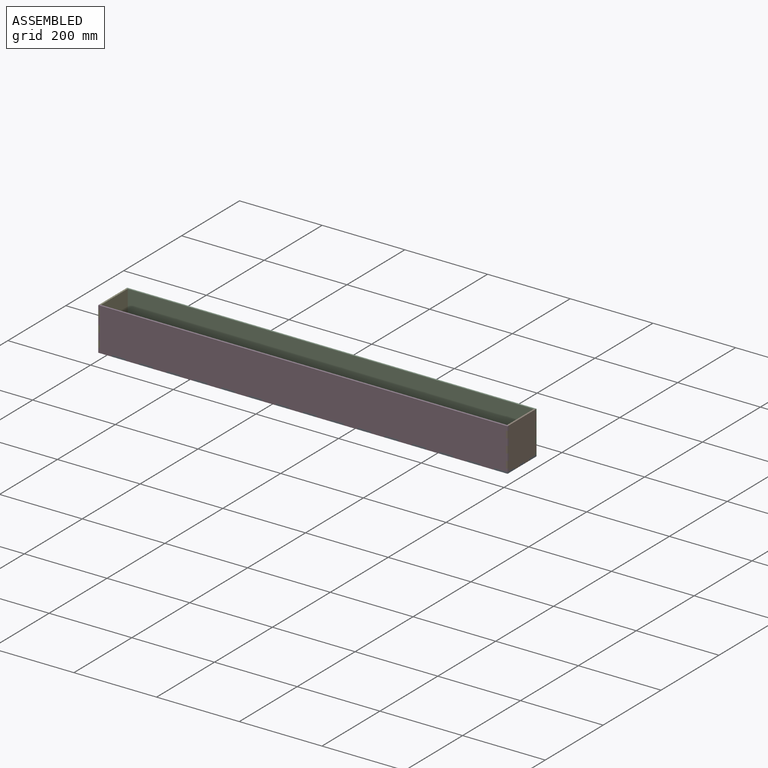
[diagram: assembled view]
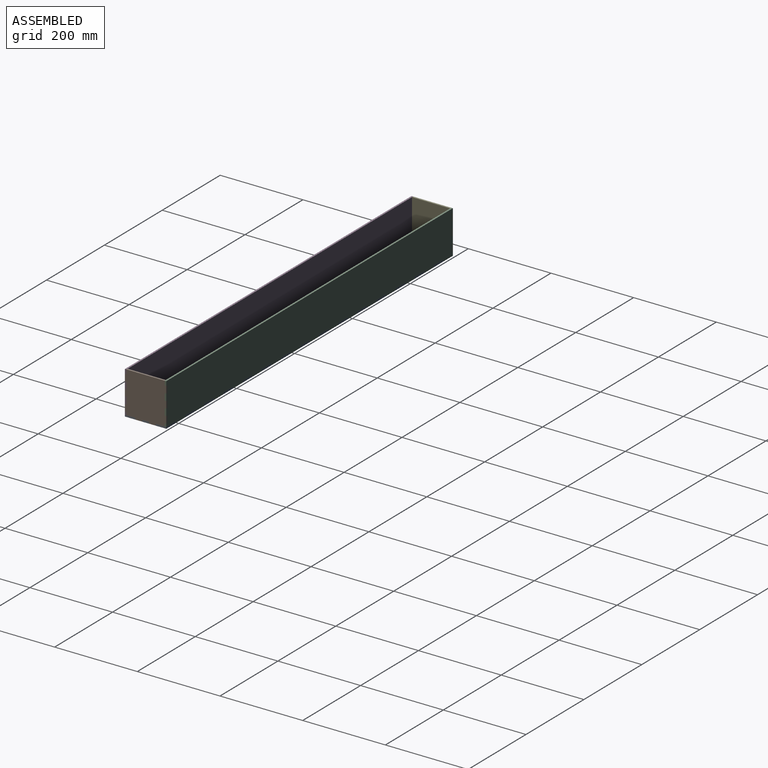
[diagram: assembled view, second angle]
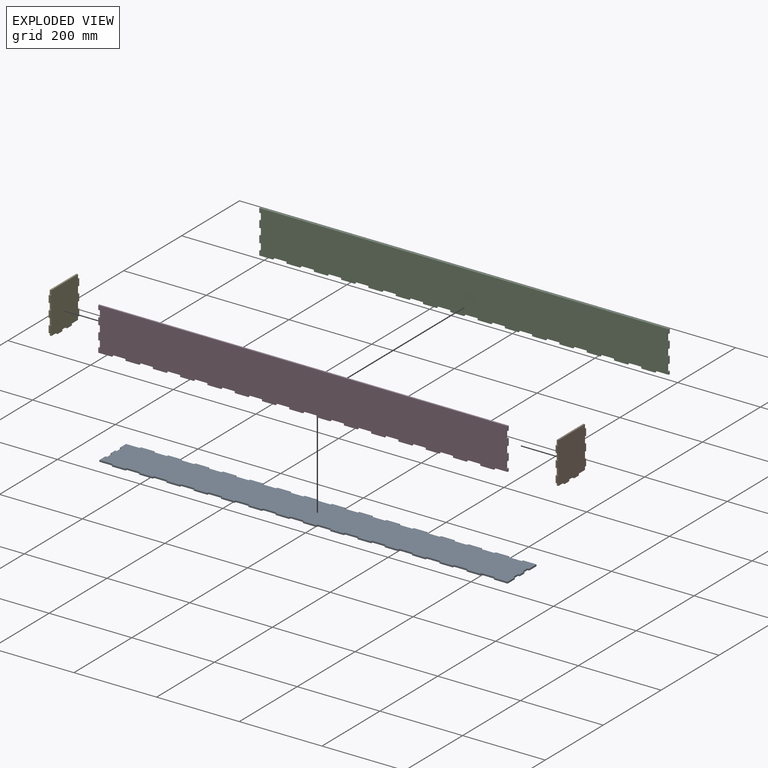
[diagram: exploded view]
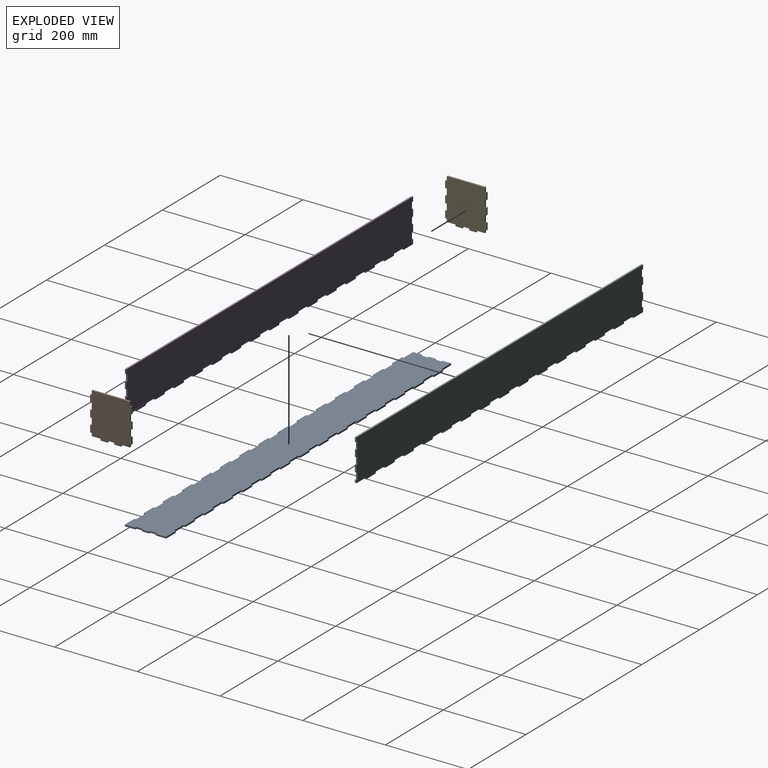
[diagram: exploded view, second angle]
ASSEMBLY  parts=5 mates=4
PART A: 138 faces, bbox 990x100x4 mm
  f0: plane 4x4mm, normal (1,0,0), area 16mm2, adj f1,f135,f136,f137
  f1: plane 33x4mm, normal (0,1,0), area 132mm2, adj f0,f2,f136,f137
  f2: plane 4x4mm, normal (-1,0,0), area 16mm2, adj f1,f3,f136,f137
  f3: plane 33x4mm, normal (0,1,0), area 132mm2, adj f2,f4,f136,f137
  f4: plane 21.25x4mm, normal (-1,0,0), area 85mm2, adj f3,f5,f136,f137
  f5: plane 4x4mm, normal (0,-1,0), area 16mm2, adj f4,f6,f136,f137
  f6: plane 16.5x4mm, normal (-1,0,0), area 66mm2, adj f5,f7,f136,f137
  f7: plane 4x4mm, normal (0,1,0), area 16mm2, adj f6,f8,f136,f137
  f8: plane 16.5x4mm, normal (-1,0,0), area 66mm2, adj f7,f9,f136,f137
  f9: plane 4x4mm, normal (0,-1,0), area 16mm2, adj f8,f10,f136,f137
  f10: plane 16.5x4mm, normal (-1,0,0), area 66mm2, adj f9,f11,f136,f137
  f11: plane 4x4mm, normal (0,1,0), area 16mm2, adj f10,f12,f136,f137
  f12: plane 21.25x4mm, normal (-1,0,0), area 85mm2, adj f11,f13,f136,f137
  f13: plane 33x4mm, normal (0,-1,0), area 132mm2, adj f12,f14,f136,f137
  f14: plane 4x4mm, normal (-1,0,0), area 16mm2, adj f13,f15,f136,f137
  f15: plane 33x4mm, normal (0,-1,0), area 132mm2, adj f14,f16,f136,f137
  f16: plane 4x4mm, normal (1,0,0), area 16mm2, adj f15,f17,f136,f137
  f17: plane 33x4mm, normal (0,-1,0), area 132mm2, adj f16,f18,f136,f137
  f18: plane 4x4mm, normal (-1,0,0), area 16mm2, adj f17,f19,f136,f137
  f19: plane 33x4mm, normal (0,-1,0), area 132mm2, adj f18,f20,f136,f137
  f20: plane 4x4mm, normal (1,0,0), area 16mm2, adj f19,f21,f136,f137
  f21: plane 33x4mm, normal (0,-1,0), area 132mm2, adj f20,f22,f136,f137
  f22: plane 4x4mm, normal (-1,0,0), area 16mm2, adj f21,f23,f136,f137
  f23: plane 33x4mm, normal (0,-1,0), area 132mm2, adj f22,f24,f136,f137
  f24: plane 4x4mm, normal (1,0,0), area 16mm2, adj f23,f25,f136,f137
  f25: plane 33x4mm, normal (0,-1,0), area 132mm2, adj f24,f26,f136,f137
  f26: plane 4x4mm, normal (-1,0,0), area 16mm2, adj f25,f27,f136,f137
  f27: plane 33x4mm, normal (0,-1,0), area 132mm2, adj f26,f28,f136,f137
  f28: plane 4x4mm, normal (1,0,0), area 16mm2, adj f27,f29,f136,f137
  f29: plane 33x4mm, normal (0,-1,0), area 132mm2, adj f28,f30,f136,f137
  f30: plane 4x4mm, normal (-1,0,0), area 16mm2, adj f29,f31,f136,f137
  f31: plane 33x4mm, normal (0,-1,0), area 132mm2, adj f30,f32,f136,f137
  f32: plane 4x4mm, normal (1,0,0), area 16mm2, adj f31,f33,f136,f137
  f33: plane 33x4mm, normal (0,-1,0), area 132mm2, adj f32,f34,f136,f137
  f34: plane 4x4mm, normal (-1,0,0), area 16mm2, adj f33,f35,f136,f137
  f35: plane 33x4mm, normal (0,-1,0), area 132mm2, adj f34,f36,f136,f137
  f36: plane 4x4mm, normal (1,0,0), area 16mm2, adj f35,f37,f136,f137
  f37: plane 33x4mm, normal (0,-1,0), area 132mm2, adj f36,f38,f136,f137
  f38: plane 4x4mm, normal (-1,0,0), area 16mm2, adj f37,f39,f136,f137
  f39: plane 33x4mm, normal (0,-1,0), area 132mm2, adj f38,f40,f136,f137
  f40: plane 4x4mm, normal (1,0,0), area 16mm2, adj f39,f41,f136,f137
  f41: plane 33x4mm, normal (0,-1,0), area 132mm2, adj f40,f42,f136,f137
  f42: plane 4x4mm, normal (-1,0,0), area 16mm2, adj f41,f43,f136,f137
  f43: plane 33x4mm, normal (0,-1,0), area 132mm2, adj f42,f44,f136,f137
  f44: plane 4x4mm, normal (1,0,0), area 16mm2, adj f43,f45,f136,f137
  f45: plane 33x4mm, normal (0,-1,0), area 132mm2, adj f44,f46,f136,f137
  f46: plane 4x4mm, normal (-1,0,0), area 16mm2, adj f45,f47,f136,f137
  f47: plane 33x4mm, normal (0,-1,0), area 132mm2, adj f46,f48,f136,f137
  f48: plane 4x4mm, normal (1,0,0), area 16mm2, adj f47,f49,f136,f137
  f49: plane 33x4mm, normal (0,-1,0), area 132mm2, adj f48,f50,f136,f137
  f50: plane 4x4mm, normal (-1,0,0), area 16mm2, adj f49,f51,f136,f137
  f51: plane 33x4mm, normal (0,-1,0), area 132mm2, adj f50,f52,f136,f137
  f52: plane 4x4mm, normal (1,0,0), area 16mm2, adj f51,f53,f136,f137
  f53: plane 33x4mm, normal (0,-1,0), area 132mm2, adj f52,f54,f136,f137
  f54: plane 4x4mm, normal (-1,0,0), area 16mm2, adj f53,f55,f136,f137
  f55: plane 33x4mm, normal (0,-1,0), area 132mm2, adj f54,f56,f136,f137
  f56: plane 4x4mm, normal (1,0,0), area 16mm2, adj f55,f57,f136,f137
  f57: plane 33x4mm, normal (0,-1,0), area 132mm2, adj f56,f58,f136,f137
  f58: plane 4x4mm, normal (-1,0,0), area 16mm2, adj f57,f59,f136,f137
  f59: plane 33x4mm, normal (0,-1,0), area 132mm2, adj f58,f60,f136,f137
  f60: plane 4x4mm, normal (1,0,0), area 16mm2, adj f59,f61,f136,f137
  f61: plane 33x4mm, normal (0,-1,0), area 132mm2, adj f60,f62,f136,f137
  f62: plane 4x4mm, normal (-1,0,0), area 16mm2, adj f61,f63,f136,f137
  f63: plane 33x4mm, normal (0,-1,0), area 132mm2, adj f62,f64,f136,f137
  f64: plane 4x4mm, normal (1,0,0), area 16mm2, adj f63,f65,f136,f137
  f65: plane 33x4mm, normal (0,-1,0), area 132mm2, adj f64,f66,f136,f137
  f66: plane 4x4mm, normal (-1,0,0), area 16mm2, adj f65,f67,f136,f137
  f67: plane 33x4mm, normal (0,-1,0), area 132mm2, adj f66,f68,f136,f137
  f68: plane 4x4mm, normal (1,0,0), area 16mm2, adj f67,f69,f136,f137
  f69: plane 33x4mm, normal (0,-1,0), area 132mm2, adj f68,f70,f136,f137
  f70: plane 4x4mm, normal (-1,0,0), area 16mm2, adj f69,f71,f136,f137
  f71: plane 33x4mm, normal (0,-1,0), area 132mm2, adj f70,f72,f136,f137
  f72: plane 25.25x4mm, normal (1,0,0), area 101mm2, adj f71,f73,f136,f137
  f73: plane 4x4mm, normal (0,1,0), area 16mm2, adj f72,f74,f136,f137
  f74: plane 16.5x4mm, normal (1,0,0), area 66mm2, adj f73,f75,f136,f137
  f75: plane 4x4mm, normal (0,-1,0), area 16mm2, adj f74,f76,f136,f137
  f76: plane 16.5x4mm, normal (1,0,0), area 66mm2, adj f75,f77,f136,f137
  f77: plane 4x4mm, normal (0,1,0), area 16mm2, adj f76,f78,f136,f137
  f78: plane 16.5x4mm, normal (1,0,0), area 66mm2, adj f77,f79,f136,f137
  f79: plane 4x4mm, normal (0,-1,0), area 16mm2, adj f78,f80,f136,f137
  f80: plane 25.25x4mm, normal (1,0,0), area 101mm2, adj f79,f81,f136,f137
  f81: plane 33x4mm, normal (0,1,0), area 132mm2, adj f80,f82,f136,f137
  f82: plane 4x4mm, normal (-1,0,0), area 16mm2, adj f81,f83,f136,f137
  f83: plane 33x4mm, normal (0,1,0), area 132mm2, adj f82,f84,f136,f137
  f84: plane 4x4mm, normal (1,0,0), area 16mm2, adj f83,f85,f136,f137
  f85: plane 33x4mm, normal (0,1,0), area 132mm2, adj f84,f86,f136,f137
  f86: plane 4x4mm, normal (-1,0,0), area 16mm2, adj f85,f87,f136,f137
  f87: plane 33x4mm, normal (0,1,0), area 132mm2, adj f86,f88,f136,f137
  f88: plane 4x4mm, normal (1,0,0), area 16mm2, adj f87,f89,f136,f137
  f89: plane 33x4mm, normal (0,1,0), area 132mm2, adj f88,f90,f136,f137
  f90: plane 4x4mm, normal (-1,0,0), area 16mm2, adj f89,f91,f136,f137
  f91: plane 33x4mm, normal (0,1,0), area 132mm2, adj f90,f92,f136,f137
  f92: plane 4x4mm, normal (1,0,0), area 16mm2, adj f91,f93,f136,f137
  f93: plane 33x4mm, normal (0,1,0), area 132mm2, adj f92,f94,f136,f137
  f94: plane 4x4mm, normal (-1,0,0), area 16mm2, adj f93,f95,f136,f137
  f95: plane 33x4mm, normal (0,1,0), area 132mm2, adj f94,f96,f136,f137
  f96: plane 4x4mm, normal (1,0,0), area 16mm2, adj f95,f97,f136,f137
  f97: plane 33x4mm, normal (0,1,0), area 132mm2, adj f96,f98,f136,f137
  f98: plane 4x4mm, normal (-1,0,0), area 16mm2, adj f97,f99,f136,f137
  f99: plane 33x4mm, normal (0,1,0), area 132mm2, adj f98,f100,f136,f137
  f100: plane 4x4mm, normal (1,0,0), area 16mm2, adj f99,f101,f136,f137
  f101: plane 33x4mm, normal (0,1,0), area 132mm2, adj f100,f102,f136,f137
  f102: plane 4x4mm, normal (-1,0,0), area 16mm2, adj f101,f103,f136,f137
  f103: plane 33x4mm, normal (0,1,0), area 132mm2, adj f102,f104,f136,f137
  f104: plane 4x4mm, normal (1,0,0), area 16mm2, adj f103,f105,f136,f137
  f105: plane 33x4mm, normal (0,1,0), area 132mm2, adj f104,f106,f136,f137
  f106: plane 4x4mm, normal (-1,0,0), area 16mm2, adj f105,f107,f136,f137
  f107: plane 33x4mm, normal (0,1,0), area 132mm2, adj f106,f108,f136,f137
  f108: plane 4x4mm, normal (1,0,0), area 16mm2, adj f107,f109,f136,f137
  f109: plane 33x4mm, normal (0,1,0), area 132mm2, adj f108,f110,f136,f137
  f110: plane 4x4mm, normal (-1,0,0), area 16mm2, adj f109,f111,f136,f137
  f111: plane 33x4mm, normal (0,1,0), area 132mm2, adj f110,f112,f136,f137
  f112: plane 4x4mm, normal (1,0,0), area 16mm2, adj f111,f113,f136,f137
  f113: plane 33x4mm, normal (0,1,0), area 132mm2, adj f112,f114,f136,f137
  f114: plane 4x4mm, normal (-1,0,0), area 16mm2, adj f113,f115,f136,f137
  f115: plane 33x4mm, normal (0,1,0), area 132mm2, adj f114,f116,f136,f137
  f116: plane 4x4mm, normal (1,0,0), area 16mm2, adj f115,f117,f136,f137
  f117: plane 33x4mm, normal (0,1,0), area 132mm2, adj f116,f118,f136,f137
  f118: plane 4x4mm, normal (-1,0,0), area 16mm2, adj f117,f119,f136,f137
  f119: plane 33x4mm, normal (0,1,0), area 132mm2, adj f118,f120,f136,f137
  f120: plane 4x4mm, normal (1,0,0), area 16mm2, adj f119,f121,f136,f137
  f121: plane 33x4mm, normal (0,1,0), area 132mm2, adj f120,f122,f136,f137
  f122: plane 4x4mm, normal (-1,0,0), area 16mm2, adj f121,f123,f136,f137
  f123: plane 33x4mm, normal (0,1,0), area 132mm2, adj f122,f124,f136,f137
  f124: plane 4x4mm, normal (1,0,0), area 16mm2, adj f123,f125,f136,f137
  f125: plane 33x4mm, normal (0,1,0), area 132mm2, adj f124,f126,f136,f137
  f126: plane 4x4mm, normal (-1,0,0), area 16mm2, adj f125,f127,f136,f137
  f127: plane 33x4mm, normal (0,1,0), area 132mm2, adj f126,f128,f136,f137
  f128: plane 4x4mm, normal (1,0,0), area 16mm2, adj f127,f129,f136,f137
  f129: plane 33x4mm, normal (0,1,0), area 132mm2, adj f128,f130,f136,f137
  f130: plane 4x4mm, normal (-1,0,0), area 16mm2, adj f129,f131,f136,f137
  f131: plane 33x4mm, normal (0,1,0), area 132mm2, adj f130,f132,f136,f137
  f132: plane 4x4mm, normal (1,0,0), area 16mm2, adj f131,f133,f136,f137
  f133: plane 33x4mm, normal (0,1,0), area 132mm2, adj f132,f134,f136,f137
  f134: plane 4x4mm, normal (-1,0,0), area 16mm2, adj f133,f135,f136,f137
  f135: plane 33x4mm, normal (0,1,0), area 132mm2, adj f0,f134,f136,f137
  f136: plane 990x100mm, normal (0,0,1), area 94776mm2, adj f0,f1,f2,f3,f4,f5,f6,f7
  f137: plane 990x100mm, normal (0,0,-1), area 94776mm2, adj f0,f1,f2,f3,f4,f5,f6,f7
PART B: 38 faces, bbox 4x100x104 mm
  f0: plane 10.5x4mm, normal (0,-1,0), area 42mm2, adj f8,f10,f12,f36
  f1: plane 10.5x4mm, normal (0,1,0), area 42mm2, adj f8,f10,f12,f34
  f2: plane 16.5x4mm, normal (0,-1,0), area 66mm2, adj f8,f10,f30,f35
  f3: plane 16.5x4mm, normal (0,1,0), area 66mm2, adj f8,f10,f28,f33
  f4: plane 16.5x4mm, normal (0,-1,0), area 66mm2, adj f8,f10,f23,f29
  f5: plane 16.5x4mm, normal (0,1,0), area 66mm2, adj f8,f10,f22,f27
  f6: plane 16.5x4mm, normal (0,0,-1), area 66mm2, adj f8,f10,f13,f18
  f7: plane 16.5x4mm, normal (0,0,-1), area 66mm2, adj f8,f10,f14,f16
  f8: plane 104x100mm, normal (-1,0,0), area 9728mm2, adj f0,f1,f2,f3,f4,f5,f6,f7
  f9: plane 7x4mm, normal (0,-1,0), area 28mm2, adj f8,f10,f19,f24
  f10: plane 104x100mm, normal (1,0,0), area 9728mm2, adj f0,f1,f2,f3,f4,f5,f6,f7
  f11: plane 7x4mm, normal (0,1,0), area 28mm2, adj f8,f10,f17,f21
  f12: plane 92x4mm, normal (0,0,1), area 368mm2, adj f0,f1,f8,f10
  f13: plane 4x4mm, normal (0,1,0), area 16mm2, adj f6,f8,f10,f15
  f14: plane 4x4mm, normal (0,-1,0), area 16mm2, adj f7,f8,f10,f15
  f15: plane 16.5x4mm, normal (0,0,-1), area 66mm2, adj f8,f10,f13,f14
  f16: plane 4x4mm, normal (0,1,0), area 16mm2, adj f7,f8,f10,f17
  f17: plane 21.25x4mm, normal (0,0,-1), area 85mm2, adj f8,f10,f11,f16
  f18: plane 4x4mm, normal (0,-1,0), area 16mm2, adj f6,f8,f10,f19
  f19: plane 21.25x4mm, normal (0,0,-1), area 85mm2, adj f8,f9,f10,f18
  f20: plane 16.5x4mm, normal (0,1,0), area 66mm2, adj f8,f10,f21,f22
  f21: plane 4x4mm, normal (0,0,-1), area 16mm2, adj f8,f10,f11,f20
  f22: plane 4x4mm, normal (0,0,1), area 16mm2, adj f5,f8,f10,f20
  f23: plane 4x4mm, normal (0,0,1), area 16mm2, adj f4,f8,f10,f25
  f24: plane 4x4mm, normal (0,0,-1), area 16mm2, adj f8,f9,f10,f25
  f25: plane 16.5x4mm, normal (0,-1,0), area 66mm2, adj f8,f10,f23,f24
  f26: plane 16.5x4mm, normal (0,1,0), area 66mm2, adj f8,f10,f27,f28
  f27: plane 4x4mm, normal (0,0,-1), area 16mm2, adj f5,f8,f10,f26
  f28: plane 4x4mm, normal (0,0,1), area 16mm2, adj f3,f8,f10,f26
  f29: plane 4x4mm, normal (0,0,-1), area 16mm2, adj f4,f8,f10,f31
  f30: plane 4x4mm, normal (0,0,1), area 16mm2, adj f2,f8,f10,f31
  f31: plane 16.5x4mm, normal (0,-1,0), area 66mm2, adj f8,f10,f29,f30
  f32: plane 16.5x4mm, normal (0,1,0), area 66mm2, adj f8,f10,f33,f34
  f33: plane 4x4mm, normal (0,0,-1), area 16mm2, adj f3,f8,f10,f32
  f34: plane 4x4mm, normal (0,0,1), area 16mm2, adj f1,f8,f10,f32
  f35: plane 4x4mm, normal (0,0,-1), area 16mm2, adj f2,f8,f10,f37
  f36: plane 4x4mm, normal (0,0,1), area 16mm2, adj f0,f8,f10,f37
  f37: plane 16.5x4mm, normal (0,-1,0), area 66mm2, adj f8,f10,f35,f36
PART C: 88 faces, bbox 990x4x104 mm
  f0: plane 16.5x4mm, normal (-1,0,0), area 66mm2, adj f6,f7,f82,f85
  f1: plane 11x4mm, normal (-1,0,0), area 44mm2, adj f6,f7,f39,f83
  f2: plane 16.5x4mm, normal (-1,0,0), area 66mm2, adj f6,f7,f70,f87
  f3: plane 16.5x4mm, normal (1,0,0), area 66mm2, adj f6,f7,f78,f80
  f4: plane 16.5x4mm, normal (1,0,0), area 66mm2, adj f6,f7,f75,f77
  f5: plane 7x4mm, normal (1,0,0), area 28mm2, adj f6,f7,f24,f74
  f6: plane 990x104mm, normal (0,-1,0), area 100584mm2, adj f0,f1,f2,f3,f4,f5,f8,f9
  f7: plane 990x104mm, normal (0,1,0), area 100584mm2, adj f0,f1,f2,f3,f4,f5,f8,f9
  f8: plane 33x4mm, normal (0,0,-1), area 132mm2, adj f6,f7,f26,f69
  f9: plane 33x4mm, normal (0,0,-1), area 132mm2, adj f6,f7,f50,f66
  f10: plane 33x4mm, normal (0,0,-1), area 132mm2, adj f6,f7,f29,f63
  f11: plane 33x4mm, normal (0,0,-1), area 132mm2, adj f6,f7,f38,f60
  f12: plane 33x4mm, normal (0,0,-1), area 132mm2, adj f6,f7,f57,f62
  f13: plane 33x4mm, normal (0,0,-1), area 132mm2, adj f6,f7,f54,f56
  f14: plane 33x4mm, normal (0,0,-1), area 132mm2, adj f6,f7,f43,f51
  f15: plane 33x4mm, normal (0,0,-1), area 132mm2, adj f6,f7,f48,f52
  f16: plane 33x4mm, normal (0,0,-1), area 132mm2, adj f6,f7,f41,f45
  f17: plane 33x4mm, normal (0,0,-1), area 132mm2, adj f6,f7,f42,f46
  f18: plane 33x4mm, normal (0,0,-1), area 132mm2, adj f6,f7,f37,f65
  f19: plane 33x4mm, normal (0,0,-1), area 132mm2, adj f6,f7,f34,f35
  f20: plane 33x4mm, normal (0,0,-1), area 132mm2, adj f6,f7,f31,f59
  f21: plane 33x4mm, normal (0,0,-1), area 132mm2, adj f6,f7,f28,f33
  f22: plane 990x4mm, normal (0,0,1), area 3960mm2, adj f6,f7,f23,f25
  f23: plane 10.5x4mm, normal (-1,0,0), area 42mm2, adj f6,f7,f22,f72
  f24: plane 33x4mm, normal (0,0,-1), area 132mm2, adj f5,f6,f7,f68
  f25: plane 10.5x4mm, normal (1,0,0), area 42mm2, adj f6,f7,f22,f81
  f26: plane 4x4mm, normal (1,0,0), area 16mm2, adj f6,f7,f8,f27
  f27: plane 33x4mm, normal (0,0,-1), area 132mm2, adj f6,f7,f26,f28
  f28: plane 4x4mm, normal (-1,0,0), area 16mm2, adj f6,f7,f21,f27
  f29: plane 4x4mm, normal (1,0,0), area 16mm2, adj f6,f7,f10,f30
  f30: plane 33x4mm, normal (0,0,-1), area 132mm2, adj f6,f7,f29,f31
  f31: plane 4x4mm, normal (-1,0,0), area 16mm2, adj f6,f7,f20,f30
  f32: plane 33x4mm, normal (0,0,-1), area 132mm2, adj f6,f7,f33,f34
  f33: plane 4x4mm, normal (1,0,0), area 16mm2, adj f6,f7,f21,f32
  f34: plane 4x4mm, normal (-1,0,0), area 16mm2, adj f6,f7,f19,f32
  f35: plane 4x4mm, normal (1,0,0), area 16mm2, adj f6,f7,f19,f36
  f36: plane 33x4mm, normal (0,0,-1), area 132mm2, adj f6,f7,f35,f37
  f37: plane 4x4mm, normal (-1,0,0), area 16mm2, adj f6,f7,f18,f36
  f38: plane 4x4mm, normal (1,0,0), area 16mm2, adj f6,f7,f11,f39
  f39: plane 33x4mm, normal (0,0,-1), area 132mm2, adj f1,f6,f7,f38
  f40: plane 33x4mm, normal (0,0,-1), area 132mm2, adj f6,f7,f41,f42
  f41: plane 4x4mm, normal (1,0,0), area 16mm2, adj f6,f7,f16,f40
  f42: plane 4x4mm, normal (-1,0,0), area 16mm2, adj f6,f7,f17,f40
  f43: plane 4x4mm, normal (1,0,0), area 16mm2, adj f6,f7,f14,f44
  f44: plane 33x4mm, normal (0,0,-1), area 132mm2, adj f6,f7,f43,f45
  f45: plane 4x4mm, normal (-1,0,0), area 16mm2, adj f6,f7,f16,f44
  f46: plane 4x4mm, normal (1,0,0), area 16mm2, adj f6,f7,f17,f47
  f47: plane 33x4mm, normal (0,0,-1), area 132mm2, adj f6,f7,f46,f48
  f48: plane 4x4mm, normal (-1,0,0), area 16mm2, adj f6,f7,f15,f47
  f49: plane 33x4mm, normal (0,0,-1), area 132mm2, adj f6,f7,f50,f51
  f50: plane 4x4mm, normal (1,0,0), area 16mm2, adj f6,f7,f9,f49
  f51: plane 4x4mm, normal (-1,0,0), area 16mm2, adj f6,f7,f14,f49
  f52: plane 4x4mm, normal (1,0,0), area 16mm2, adj f6,f7,f15,f53
  f53: plane 33x4mm, normal (0,0,-1), area 132mm2, adj f6,f7,f52,f54
  f54: plane 4x4mm, normal (-1,0,0), area 16mm2, adj f6,f7,f13,f53
  f55: plane 33x4mm, normal (0,0,-1), area 132mm2, adj f6,f7,f56,f57
  f56: plane 4x4mm, normal (1,0,0), area 16mm2, adj f6,f7,f13,f55
  f57: plane 4x4mm, normal (-1,0,0), area 16mm2, adj f6,f7,f12,f55
  f58: plane 33x4mm, normal (0,0,-1), area 132mm2, adj f6,f7,f59,f60
  f59: plane 4x4mm, normal (1,0,0), area 16mm2, adj f6,f7,f20,f58
  f60: plane 4x4mm, normal (-1,0,0), area 16mm2, adj f6,f7,f11,f58
  f61: plane 33x4mm, normal (0,0,-1), area 132mm2, adj f6,f7,f62,f63
  f62: plane 4x4mm, normal (1,0,0), area 16mm2, adj f6,f7,f12,f61
  f63: plane 4x4mm, normal (-1,0,0), area 16mm2, adj f6,f7,f10,f61
  f64: plane 33x4mm, normal (0,0,-1), area 132mm2, adj f6,f7,f65,f66
  f65: plane 4x4mm, normal (1,0,0), area 16mm2, adj f6,f7,f18,f64
  f66: plane 4x4mm, normal (-1,0,0), area 16mm2, adj f6,f7,f9,f64
  f67: plane 33x4mm, normal (0,0,-1), area 132mm2, adj f6,f7,f68,f69
  f68: plane 4x4mm, normal (1,0,0), area 16mm2, adj f6,f7,f24,f67
  f69: plane 4x4mm, normal (-1,0,0), area 16mm2, adj f6,f7,f8,f67
  f70: plane 4x4mm, normal (0,0,1), area 16mm2, adj f2,f6,f7,f71
  f71: plane 16.5x4mm, normal (-1,0,0), area 66mm2, adj f6,f7,f70,f72
  f72: plane 4x4mm, normal (0,0,-1), area 16mm2, adj f6,f7,f23,f71
  f73: plane 16.5x4mm, normal (1,0,0), area 66mm2, adj f6,f7,f74,f75
  f74: plane 4x4mm, normal (0,0,1), area 16mm2, adj f5,f6,f7,f73
  f75: plane 4x4mm, normal (0,0,-1), area 16mm2, adj f4,f6,f7,f73
  f76: plane 16.5x4mm, normal (1,0,0), area 66mm2, adj f6,f7,f77,f78
  f77: plane 4x4mm, normal (0,0,1), area 16mm2, adj f4,f6,f7,f76
  f78: plane 4x4mm, normal (0,0,-1), area 16mm2, adj f3,f6,f7,f76
  f79: plane 16.5x4mm, normal (1,0,0), area 66mm2, adj f6,f7,f80,f81
  f80: plane 4x4mm, normal (0,0,1), area 16mm2, adj f3,f6,f7,f79
  f81: plane 4x4mm, normal (0,0,-1), area 16mm2, adj f6,f7,f25,f79
  f82: plane 4x4mm, normal (0,0,-1), area 16mm2, adj f0,f6,f7,f84
  f83: plane 4x4mm, normal (0,0,1), area 16mm2, adj f1,f6,f7,f84
  f84: plane 16.5x4mm, normal (-1,0,0), area 66mm2, adj f6,f7,f82,f83
  f85: plane 4x4mm, normal (0,0,1), area 16mm2, adj f0,f6,f7,f86
  f86: plane 16.5x4mm, normal (-1,0,0), area 66mm2, adj f6,f7,f85,f87
  f87: plane 4x4mm, normal (0,0,-1), area 16mm2, adj f2,f6,f7,f86
PART D: same geometry as C
PART E: same geometry as B
PLACE A t=(-11.89,58.11,-2.53)mm fixed
PLACE B t=(974.11,58.11,-2.53)mm
PLACE C t=(-11.89,154.11,-2.53)mm
PLACE D t=(-11.89,58.11,-2.53)mm
PLACE E t=(-11.89,58.11,-2.53)mm
MATE fastened C.f7 <-> A.f81  axis (0,1,0) through (450.11,108.11,-2.53)mm
MATE fastened B.f10 <-> A.f72  axis (1,0,0) through (483.11,33.36,-2.53)mm
MATE fastened E.f8 <-> A.f12  axis (-1,0,0) through (-506.89,33.36,-2.53)mm
MATE fastened A.f137 <-> D.f27  axis (0,0,-1) through (384.11,8.11,-2.53)mm
